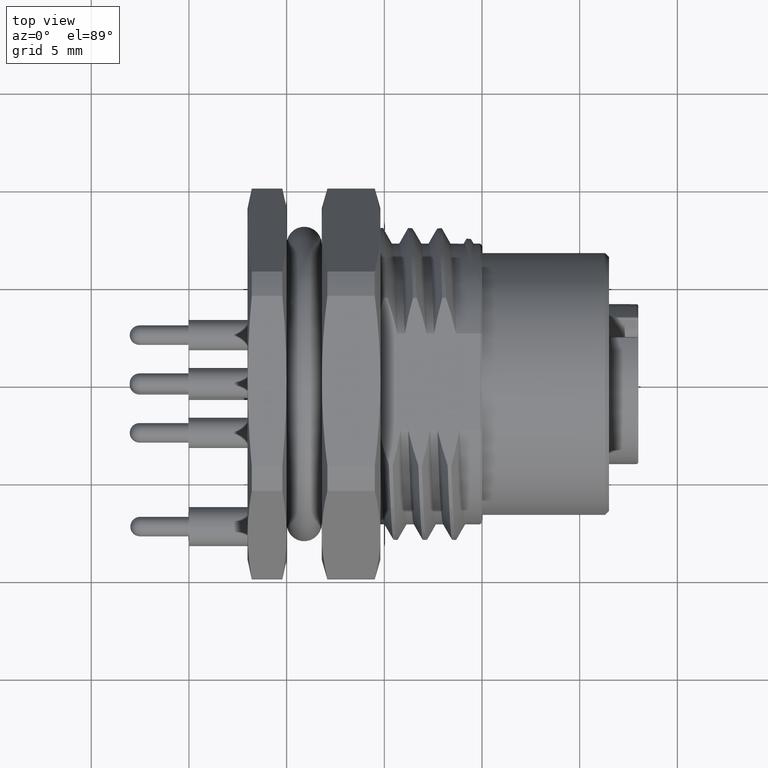
[diagram: clean part render]
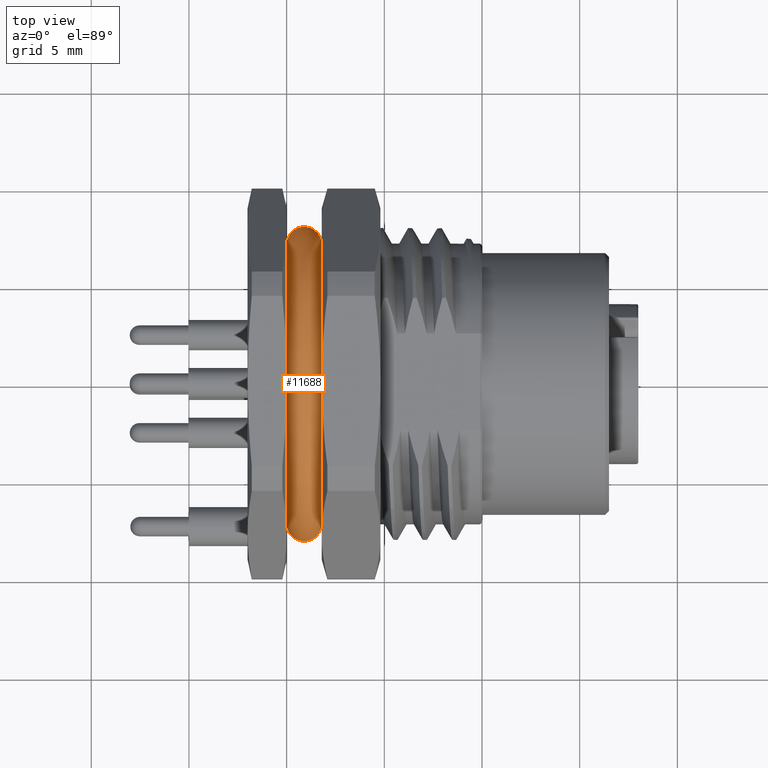
[diagram: same view with one face highlighted and labeled with its STEP entity id]
A machine part, top view. The second image highlights one B-rep face of the part: STEP entity #11688.
In plain terms, the highlighted toroidal blend (fillet) surface has major radius 7.15 mm and minor (blend) radius 0.9 mm.
Its self-contained STEP definition (entity closure, byte-faithful):
#1404=CARTESIAN_POINT('',(9.E-1,7.149999999999E0,0.E0));
#1405=DIRECTION('',(0.E0,0.E0,1.E0));
#1406=DIRECTION('',(1.E0,1.344110008480E-12,0.E0));
#1407=AXIS2_PLACEMENT_3D('',#1404,#1405,#1406);
#1409=CARTESIAN_POINT('',(9.E-1,-7.149999999999E0,0.E0));
#1410=DIRECTION('',(0.E0,0.E0,1.E0));
#1411=DIRECTION('',(-9.772208263449E-1,-2.122250139777E-1,0.E0));
#1412=AXIS2_PLACEMENT_3D('',#1409,#1410,#1411);
#1414=CARTESIAN_POINT('',(1.8E0,0.E0,0.E0));
#1415=DIRECTION('',(1.E0,0.E0,0.E0));
#1416=DIRECTION('',(0.E0,-3.297853460854E-1,9.440559440559E-1));
#1417=AXIS2_PLACEMENT_3D('',#1414,#1415,#1416);
#1432=CARTESIAN_POINT('',(2.050125628966E-2,2.390146859520E0,6.941002512578E0));
#1433=CARTESIAN_POINT('',(1.470707897058E-2,2.265055351631E0,6.955860334715E0));
#1434=CARTESIAN_POINT('',(6.346250183089E-3,2.009491486816E0,6.984258330993E0));
#1435=CARTESIAN_POINT('',(7.463650618075E-4,1.610399261247E0,7.021253848652E0));
#1436=CARTESIAN_POINT('',(1.713765110821E-9,1.333067660221E0,7.041327972464E0));
#1437=CARTESIAN_POINT('',(1.856848008686E-14,1.191637939945E0,
7.049999982572E0));
#1449=CARTESIAN_POINT('',(1.856848008686E-14,-1.191637939902E0,
7.049999982574E0));
#1450=CARTESIAN_POINT('',(1.713451464576E-9,-1.333057533045E0,
7.041328593430E0));
#1451=CARTESIAN_POINT('',(7.462653909514E-4,-1.610375571477E0,
7.021255700834E0));
#1452=CARTESIAN_POINT('',(6.345534488536E-3,-2.009460476066E0,
6.984261547397E0));
#1453=CARTESIAN_POINT('',(1.470646330640E-2,-2.265042059950E0,
6.955861913443E0));
#1454=CARTESIAN_POINT('',(2.050125628966E-2,-2.390146859520E0,
6.941002512578E0));
#1466=CARTESIAN_POINT('',(1.856848008686E-14,1.191637939945E0,
7.049999982572E0));
#1467=CARTESIAN_POINT('',(-4.319579379021E-9,1.093793133435E0,
7.028141689012E0));
#1468=CARTESIAN_POINT('',(4.765135336368E-3,8.973136132214E-1,
6.989207357453E0));
#1469=CARTESIAN_POINT('',(1.720466218632E-2,5.992710738620E-1,
6.947956431763E0));
#1470=CARTESIAN_POINT('',(2.759296533205E-2,2.994433360781E-1,
6.923988291285E0));
#1471=CARTESIAN_POINT('',(3.150970938234E-2,-1.219846427073E-3,
6.916224192941E0));
#1472=CARTESIAN_POINT('',(2.753608234112E-2,-3.014468301270E-1,
6.924106306694E0));
#1473=CARTESIAN_POINT('',(1.715535175102E-2,-6.004070679133E-1,
6.948098672419E0));
#1474=CARTESIAN_POINT('',(4.759593513945E-3,-8.975638254672E-1,
6.989262316206E0));
#1475=CARTESIAN_POINT('',(-4.317165279418E-9,-1.093836919017E0,
7.028151470619E0));
#1476=CARTESIAN_POINT('',(1.856848008686E-14,-1.191637939902E0,
7.049999982574E0));
#1482=CARTESIAN_POINT('',(2.050125628966E-2,0.E0,0.E0));
#1483=DIRECTION('',(1.E0,0.E0,0.E0));
#1484=DIRECTION('',(0.E0,1.E0,0.E0));
#1485=AXIS2_PLACEMENT_3D('',#1482,#1483,#1484);
#1498=CARTESIAN_POINT('',(2.050125628966E-2,0.E0,0.E0));
#1499=DIRECTION('',(1.E0,0.E0,0.E0));
#1500=DIRECTION('',(0.E0,-3.255886175525E-1,9.455115293428E-1));
#1501=AXIS2_PLACEMENT_3D('',#1498,#1499,#1500);
#1508=CARTESIAN_POINT('',(1.8E0,0.E0,0.E0));
#1509=DIRECTION('',(1.E0,0.E0,0.E0));
#1510=DIRECTION('',(0.E0,1.E0,0.E0));
#1511=AXIS2_PLACEMENT_3D('',#1508,#1509,#1510);
#1703=CARTESIAN_POINT('',(1.8E0,-2.357965224510E0,6.75E0));
#1704=CARTESIAN_POINT('',(1.8E0,-2.192112691392E0,6.75E0));
#1705=CARTESIAN_POINT('',(1.790103144592E0,-1.854265579051E0,6.75E0));
#1706=CARTESIAN_POINT('',(1.757813354437E0,-1.317310249934E0,6.75E0));
#1707=CARTESIAN_POINT('',(1.725164066981E0,-7.852032258186E-1,6.75E0));
#1708=CARTESIAN_POINT('',(1.705418276685E0,-2.610090735949E-1,6.75E0));
#1709=CARTESIAN_POINT('',(1.705436060337E0,2.621424434406E-1,6.75E0));
#1710=CARTESIAN_POINT('',(1.725249724524E0,7.868814436897E-1,6.75E0));
#1711=CARTESIAN_POINT('',(1.757935385776E0,1.319189817566E0,6.75E0));
#1712=CARTESIAN_POINT('',(1.790106232048E0,1.854543608513E0,6.75E0));
#1713=CARTESIAN_POINT('',(1.8E0,2.192177213393E0,6.75E0));
#1714=CARTESIAN_POINT('',(1.8E0,2.357965224510E0,6.75E0));
#10541=VERTEX_POINT('',#1703);
#10542=VERTEX_POINT('',#1714);
#10545=CARTESIAN_POINT('',(1.8E0,-7.15E0,0.E0));
#10546=VERTEX_POINT('',#10545);
#10547=CARTESIAN_POINT('',(1.8E0,7.15E0,0.E0));
#10548=VERTEX_POINT('',#10547);
#10549=CARTESIAN_POINT('',(2.050125628966E-2,-2.390146859520E0,
6.941002512578E0));
#10550=CARTESIAN_POINT('',(2.050125628966E-2,-7.341002512579E0,0.E0));
#10551=VERTEX_POINT('',#10549);
#10552=VERTEX_POINT('',#10550);
#10558=CARTESIAN_POINT('',(2.050125628966E-2,7.341002512579E0,
1.053497566961E-14));
#10559=CARTESIAN_POINT('',(2.050125628966E-2,2.390146859520E0,
6.941002512578E0));
#10560=VERTEX_POINT('',#10558);
#10561=VERTEX_POINT('',#10559);
#10562=VERTEX_POINT('',#1437);
#10563=VERTEX_POINT('',#1449);
#11664=CARTESIAN_POINT('',(9.E-1,0.E0,0.E0));
#11665=DIRECTION('',(1.E0,0.E0,0.E0));
#11666=DIRECTION('',(0.E0,-1.E0,0.E0));
#11667=AXIS2_PLACEMENT_3D('',#11664,#11665,#11666);
#11668=TOROIDAL_SURFACE('',#11667,7.149999999999E0,8.999999999999E-1);
#11670=ORIENTED_EDGE('',*,*,#11669,.F.);
#11672=ORIENTED_EDGE('',*,*,#11671,.F.);
#11674=ORIENTED_EDGE('',*,*,#11673,.F.);
#11676=ORIENTED_EDGE('',*,*,#11675,.F.);
#11677=ORIENTED_EDGE('',*,*,#11631,.F.);
#11679=ORIENTED_EDGE('',*,*,#11678,.T.);
#11681=ORIENTED_EDGE('',*,*,#11680,.F.);
#11682=ORIENTED_EDGE('',*,*,#11650,.T.);
#11683=ORIENTED_EDGE('',*,*,#11640,.F.);
#11685=ORIENTED_EDGE('',*,*,#11684,.F.);
#11686=EDGE_LOOP('',(#11670,#11672,#11674,#11676,#11677,#11679,#11681,#11682,
#11683,#11685));
#11687=FACE_OUTER_BOUND('',#11686,.F.);
#11688=ADVANCED_FACE('',(#11687),#11668,.T.);
#1408=CIRCLE('',#1407,8.999999999999E-1);
#1413=CIRCLE('',#1412,8.999999999999E-1);
#1418=CIRCLE('',#1417,7.15E0);
#1438=B_SPLINE_CURVE_WITH_KNOTS('',3,(#1432,#1433,#1434,#1435,#1436,#1437),
.UNSPECIFIED.,.F.,.F.,(4,1,1,4),(0.E0,3.333333333333E-1,6.666666666667E-1,1.E0),
.UNSPECIFIED.);
#1455=B_SPLINE_CURVE_WITH_KNOTS('',3,(#1449,#1450,#1451,#1452,#1453,#1454),
.UNSPECIFIED.,.F.,.F.,(4,1,1,4),(0.E0,3.333333333333E-1,6.666666666667E-1,1.E0),
.UNSPECIFIED.);
#1477=B_SPLINE_CURVE_WITH_KNOTS('',3,(#1466,#1467,#1468,#1469,#1470,#1471,#1472,
#1473,#1474,#1475,#1476),.UNSPECIFIED.,.F.,.F.,(4,1,1,1,1,1,1,1,4),(0.E0,
1.25E-1,2.5E-1,3.75E-1,5.E-1,6.25E-1,7.5E-1,8.75E-1,1.E0),.UNSPECIFIED.);
#1486=CIRCLE('',#1485,7.341002512579E0);
#1502=CIRCLE('',#1501,7.341002512579E0);
#1512=CIRCLE('',#1511,7.15E0);
#1715=B_SPLINE_CURVE_WITH_KNOTS('',3,(#1703,#1704,#1705,#1706,#1707,#1708,#1709,
#1710,#1711,#1712,#1713,#1714),.UNSPECIFIED.,.F.,.F.,(4,1,1,1,1,1,1,1,1,4),
(0.E0,1.111111111111E-1,2.222222222222E-1,3.333333333333E-1,4.444444444444E-1,
5.555555555556E-1,6.666666666667E-1,7.777777777778E-1,8.888888888889E-1,1.E0),
.UNSPECIFIED.);
#11631=EDGE_CURVE('',#10548,#10560,#1408,.T.);
#11640=EDGE_CURVE('',#10552,#10546,#1413,.T.);
#11650=EDGE_CURVE('',#10541,#10546,#1418,.T.);
#11669=EDGE_CURVE('',#10563,#10551,#1455,.T.);
#11671=EDGE_CURVE('',#10562,#10563,#1477,.T.);
#11673=EDGE_CURVE('',#10561,#10562,#1438,.T.);
#11675=EDGE_CURVE('',#10560,#10561,#1486,.T.);
#11678=EDGE_CURVE('',#10548,#10542,#1512,.T.);
#11680=EDGE_CURVE('',#10541,#10542,#1715,.T.);
#11684=EDGE_CURVE('',#10551,#10552,#1502,.T.);